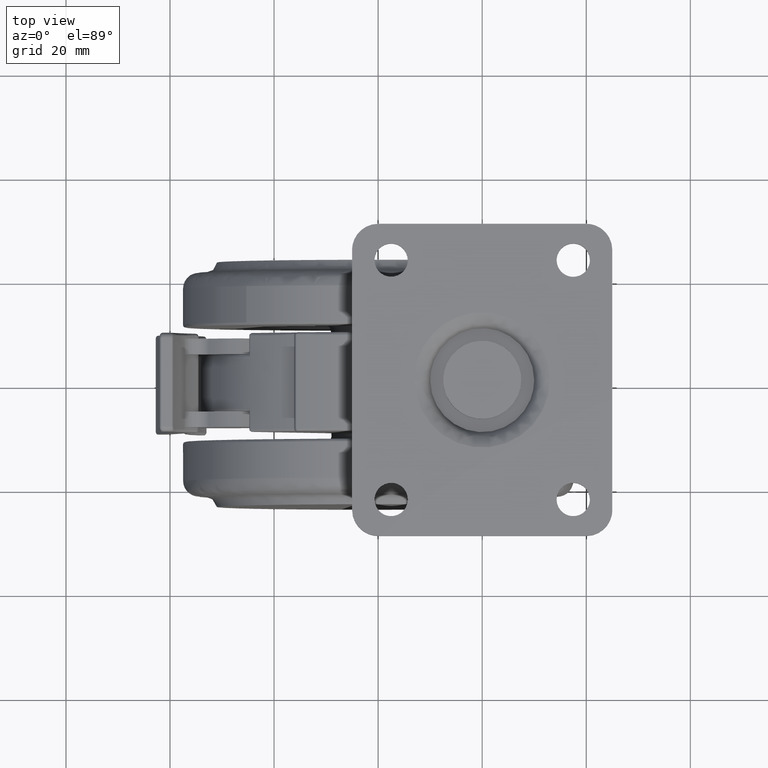
[diagram: clean part render]
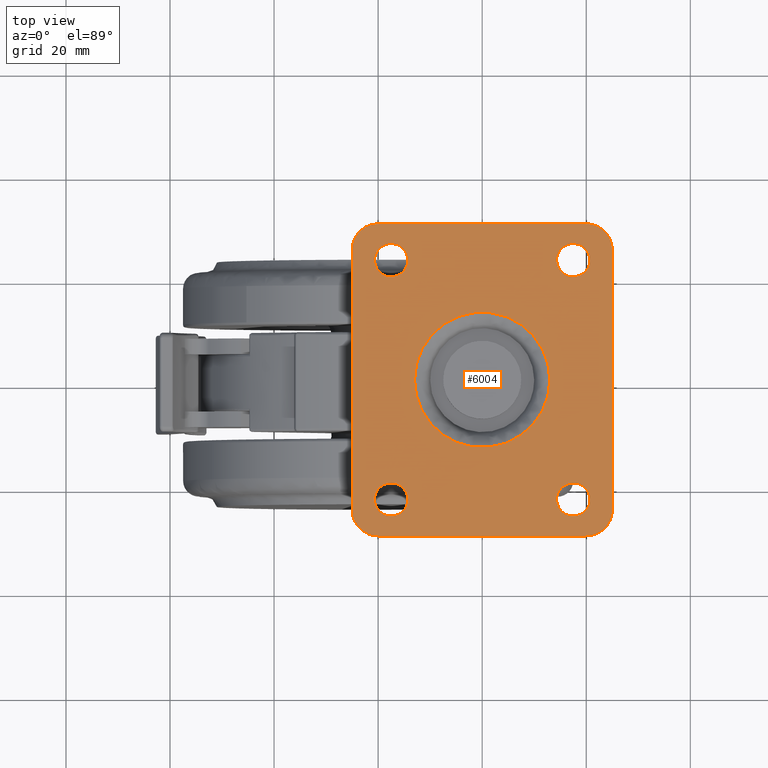
[diagram: same view with one face highlighted and labeled with its STEP entity id]
A machine part, top view. The second image highlights one B-rep face of the part: STEP entity #6004.
In plain terms, the highlighted face is a freeform B-spline surface patch.
Its self-contained STEP definition (entity closure, byte-faithful):
#4632=CARTESIAN_POINT('',(17.751069106415152,26.190135467939239,14.0));
#4633=VERTEX_POINT('',#4632);
#4639=CARTESIAN_POINT('',(14.300000000000001,23.0,14.0));
#4640=VERTEX_POINT('',#4639);
#4641=CARTESIAN_POINT('',(17.751069106415144,26.190135467939239,14.000000000000002));
#4642=CARTESIAN_POINT('',(17.625728342467767,26.200000000000003,13.999999999999996));
#4643=CARTESIAN_POINT('',(17.500000000000000,26.199999999999999,14.0));
#4644=CARTESIAN_POINT('',(14.299999999999999,26.200000000000006,13.999999999999998));
#4645=CARTESIAN_POINT('',(14.300000000000001,23.0,14.0));
#4653=(BOUNDED_CURVE()B_SPLINE_CURVE(2,(#4641,#4642,#4643,#4644,#4645),.UNSPECIFIED.,.F.,.U.)B_SPLINE_CURVE_WITH_KNOTS((3,2,3),(0.736331300628143,0.750000000000000,1.0),.UNSPECIFIED.)CURVE()GEOMETRIC_REPRESENTATION_ITEM()RATIONAL_B_SPLINE_CURVE((0.969723356162166,0.983986122575934,1.0,0.707106781186548,1.0))REPRESENTATION_ITEM(''));
#4654=EDGE_CURVE('',#4633,#4640,#4653,.T.);
#4656=CARTESIAN_POINT('',(17.248930893584848,19.809864532060761,14.0));
#4657=VERTEX_POINT('',#4656);
#4658=CARTESIAN_POINT('',(14.300000000000001,23.0,14.0));
#4659=CARTESIAN_POINT('',(14.300000000000002,20.041950426773770,13.999999999999995));
#4660=CARTESIAN_POINT('',(17.248930893584848,19.809864532060761,13.999999999999995));
#4668=(BOUNDED_CURVE()B_SPLINE_CURVE(2,(#4658,#4659,#4660),.UNSPECIFIED.,.F.,.U.)B_SPLINE_CURVE_WITH_KNOTS((3,3),(0.0,0.236331300628143),.UNSPECIFIED.)CURVE()GEOMETRIC_REPRESENTATION_ITEM()RATIONAL_B_SPLINE_CURVE((1.0,0.723120658610614,0.969723356162166))REPRESENTATION_ITEM(''));
#4669=EDGE_CURVE('',#4640,#4657,#4668,.T.);
#4715=CARTESIAN_POINT('',(20.699999999999999,23.0,14.0));
#4716=VERTEX_POINT('',#4715);
#4717=CARTESIAN_POINT('',(17.248930893584848,19.809864532060761,13.999999999999995));
#4718=CARTESIAN_POINT('',(17.374271657532230,19.799999999999994,13.999999999999998));
#4719=CARTESIAN_POINT('',(17.500000000000000,19.800000000000001,14.0));
#4720=CARTESIAN_POINT('',(20.700000000000006,19.799999999999997,13.999999999999998));
#4721=CARTESIAN_POINT('',(20.699999999999999,23.0,14.0));
#4729=(BOUNDED_CURVE()B_SPLINE_CURVE(2,(#4717,#4718,#4719,#4720,#4721),.UNSPECIFIED.,.F.,.U.)B_SPLINE_CURVE_WITH_KNOTS((3,2,3),(0.236331300628143,0.250000000000000,0.500000000000000),.UNSPECIFIED.)CURVE()GEOMETRIC_REPRESENTATION_ITEM()RATIONAL_B_SPLINE_CURVE((0.969723356162166,0.983986122575934,1.0,0.707106781186548,1.0))REPRESENTATION_ITEM(''));
#4730=EDGE_CURVE('',#4657,#4716,#4729,.T.);
#4732=CARTESIAN_POINT('',(20.699999999999999,23.0,14.0));
#4733=CARTESIAN_POINT('',(20.700000000000006,25.958049573226237,13.999999999999995));
#4734=CARTESIAN_POINT('',(17.751069106415144,26.190135467939239,14.000000000000002));
#4742=(BOUNDED_CURVE()B_SPLINE_CURVE(2,(#4732,#4733,#4734),.UNSPECIFIED.,.F.,.U.)B_SPLINE_CURVE_WITH_KNOTS((3,3),(0.500000000000000,0.736331300628143),.UNSPECIFIED.)CURVE()GEOMETRIC_REPRESENTATION_ITEM()RATIONAL_B_SPLINE_CURVE((1.0,0.723120658610614,0.969723356162166))REPRESENTATION_ITEM(''));
#4743=EDGE_CURVE('',#4716,#4633,#4742,.T.);
#4814=CARTESIAN_POINT('',(-17.248930893584848,26.190135467939239,14.0));
#4815=VERTEX_POINT('',#4814);
#4821=CARTESIAN_POINT('',(-20.699999999999999,23.0,14.0));
#4822=VERTEX_POINT('',#4821);
#4823=CARTESIAN_POINT('',(-17.248930893584856,26.190135467939239,14.000000000000002));
#4824=CARTESIAN_POINT('',(-17.374271657532240,26.200000000000003,13.999999999999996));
#4825=CARTESIAN_POINT('',(-17.500000000000000,26.199999999999999,14.0));
#4826=CARTESIAN_POINT('',(-20.700000000000006,26.200000000000006,13.999999999999998));
#4827=CARTESIAN_POINT('',(-20.699999999999999,23.0,14.0));
#4835=(BOUNDED_CURVE()B_SPLINE_CURVE(2,(#4823,#4824,#4825,#4826,#4827),.UNSPECIFIED.,.F.,.U.)B_SPLINE_CURVE_WITH_KNOTS((3,2,3),(0.736331300628143,0.750000000000000,1.0),.UNSPECIFIED.)CURVE()GEOMETRIC_REPRESENTATION_ITEM()RATIONAL_B_SPLINE_CURVE((0.969723356162166,0.983986122575934,1.0,0.707106781186548,1.0))REPRESENTATION_ITEM(''));
#4836=EDGE_CURVE('',#4815,#4822,#4835,.T.);
#4838=CARTESIAN_POINT('',(-17.751069106415152,19.809864532060761,14.0));
#4839=VERTEX_POINT('',#4838);
#4840=CARTESIAN_POINT('',(-20.699999999999999,23.0,14.0));
#4841=CARTESIAN_POINT('',(-20.700000000000010,20.041950426773774,13.999999999999996));
#4842=CARTESIAN_POINT('',(-17.751069106415144,19.809864532060754,14.000000000000002));
#4850=(BOUNDED_CURVE()B_SPLINE_CURVE(2,(#4840,#4841,#4842),.UNSPECIFIED.,.F.,.U.)B_SPLINE_CURVE_WITH_KNOTS((3,3),(0.0,0.236331300628143),.UNSPECIFIED.)CURVE()GEOMETRIC_REPRESENTATION_ITEM()RATIONAL_B_SPLINE_CURVE((1.0,0.723120658610614,0.969723356162166))REPRESENTATION_ITEM(''));
#4851=EDGE_CURVE('',#4822,#4839,#4850,.T.);
#4897=CARTESIAN_POINT('',(-14.300000000000001,23.0,14.0));
#4898=VERTEX_POINT('',#4897);
#4899=CARTESIAN_POINT('',(-17.751069106415155,19.809864532060768,14.000000000000002));
#4900=CARTESIAN_POINT('',(-17.625728342467767,19.800000000000001,13.999999999999996));
#4901=CARTESIAN_POINT('',(-17.500000000000000,19.800000000000001,14.0));
#4902=CARTESIAN_POINT('',(-14.299999999999999,19.799999999999997,13.999999999999998));
#4903=CARTESIAN_POINT('',(-14.300000000000001,23.0,14.0));
#4911=(BOUNDED_CURVE()B_SPLINE_CURVE(2,(#4899,#4900,#4901,#4902,#4903),.UNSPECIFIED.,.F.,.U.)B_SPLINE_CURVE_WITH_KNOTS((3,2,3),(0.236331300628143,0.250000000000000,0.500000000000000),.UNSPECIFIED.)CURVE()GEOMETRIC_REPRESENTATION_ITEM()RATIONAL_B_SPLINE_CURVE((0.969723356162166,0.983986122575934,1.0,0.707106781186548,1.0))REPRESENTATION_ITEM(''));
#4912=EDGE_CURVE('',#4839,#4898,#4911,.T.);
#4914=CARTESIAN_POINT('',(-14.300000000000001,23.0,14.0));
#4915=CARTESIAN_POINT('',(-14.300000000000002,25.958049573226237,13.999999999999995));
#4916=CARTESIAN_POINT('',(-17.248930893584856,26.190135467939239,14.000000000000002));
#4924=(BOUNDED_CURVE()B_SPLINE_CURVE(2,(#4914,#4915,#4916),.UNSPECIFIED.,.F.,.U.)B_SPLINE_CURVE_WITH_KNOTS((3,3),(0.500000000000000,0.736331300628143),.UNSPECIFIED.)CURVE()GEOMETRIC_REPRESENTATION_ITEM()RATIONAL_B_SPLINE_CURVE((1.0,0.723120658610614,0.969723356162166))REPRESENTATION_ITEM(''));
#4925=EDGE_CURVE('',#4898,#4815,#4924,.T.);
#4996=CARTESIAN_POINT('',(-17.248930893584848,-19.809864532060761,14.0));
#4997=VERTEX_POINT('',#4996);
#5003=CARTESIAN_POINT('',(-20.699999999999999,-23.0,14.0));
#5004=VERTEX_POINT('',#5003);
#5005=CARTESIAN_POINT('',(-17.248930893584856,-19.809864532060754,14.000000000000002));
#5006=CARTESIAN_POINT('',(-17.374271657532240,-19.799999999999990,13.999999999999996));
#5007=CARTESIAN_POINT('',(-17.500000000000000,-19.800000000000001,14.0));
#5008=CARTESIAN_POINT('',(-20.700000000000006,-19.799999999999997,13.999999999999998));
#5009=CARTESIAN_POINT('',(-20.699999999999999,-23.0,14.0));
#5017=(BOUNDED_CURVE()B_SPLINE_CURVE(2,(#5005,#5006,#5007,#5008,#5009),.UNSPECIFIED.,.F.,.U.)B_SPLINE_CURVE_WITH_KNOTS((3,2,3),(0.736331300628143,0.750000000000000,1.0),.UNSPECIFIED.)CURVE()GEOMETRIC_REPRESENTATION_ITEM()RATIONAL_B_SPLINE_CURVE((0.969723356162166,0.983986122575934,1.0,0.707106781186548,1.0))REPRESENTATION_ITEM(''));
#5018=EDGE_CURVE('',#4997,#5004,#5017,.T.);
#5020=CARTESIAN_POINT('',(-17.751069106415152,-26.190135467939239,14.0));
#5021=VERTEX_POINT('',#5020);
#5022=CARTESIAN_POINT('',(-20.699999999999999,-23.0,14.0));
#5023=CARTESIAN_POINT('',(-20.699999999999999,-25.958049573226234,14.0));
#5024=CARTESIAN_POINT('',(-17.751069106415152,-26.190135467939246,13.999999999999998));
#5032=(BOUNDED_CURVE()B_SPLINE_CURVE(2,(#5022,#5023,#5024),.UNSPECIFIED.,.F.,.U.)B_SPLINE_CURVE_WITH_KNOTS((3,3),(0.0,0.236331300628143),.UNSPECIFIED.)CURVE()GEOMETRIC_REPRESENTATION_ITEM()RATIONAL_B_SPLINE_CURVE((1.0,0.723120658610614,0.969723356162167))REPRESENTATION_ITEM(''));
#5033=EDGE_CURVE('',#5004,#5021,#5032,.T.);
#5079=CARTESIAN_POINT('',(-14.300000000000001,-23.0,14.0));
#5080=VERTEX_POINT('',#5079);
#5081=CARTESIAN_POINT('',(-17.751069106415152,-26.190135467939246,13.999999999999998));
#5082=CARTESIAN_POINT('',(-17.625728342467767,-26.200000000000010,14.000000000000004));
#5083=CARTESIAN_POINT('',(-17.500000000000000,-26.199999999999999,14.0));
#5084=CARTESIAN_POINT('',(-14.299999999999999,-26.200000000000006,13.999999999999998));
#5085=CARTESIAN_POINT('',(-14.300000000000001,-23.0,14.0));
#5093=(BOUNDED_CURVE()B_SPLINE_CURVE(2,(#5081,#5082,#5083,#5084,#5085),.UNSPECIFIED.,.F.,.U.)B_SPLINE_CURVE_WITH_KNOTS((3,2,3),(0.236331300628143,0.250000000000000,0.500000000000000),.UNSPECIFIED.)CURVE()GEOMETRIC_REPRESENTATION_ITEM()RATIONAL_B_SPLINE_CURVE((0.969723356162167,0.983986122575934,1.0,0.707106781186548,1.0))REPRESENTATION_ITEM(''));
#5094=EDGE_CURVE('',#5021,#5080,#5093,.T.);
#5096=CARTESIAN_POINT('',(-14.300000000000001,-23.0,14.0));
#5097=CARTESIAN_POINT('',(-14.300000000000006,-20.041950426773759,14.0));
#5098=CARTESIAN_POINT('',(-17.248930893584848,-19.809864532060761,13.999999999999998));
#5106=(BOUNDED_CURVE()B_SPLINE_CURVE(2,(#5096,#5097,#5098),.UNSPECIFIED.,.F.,.U.)B_SPLINE_CURVE_WITH_KNOTS((3,3),(0.500000000000000,0.736331300628143),.UNSPECIFIED.)CURVE()GEOMETRIC_REPRESENTATION_ITEM()RATIONAL_B_SPLINE_CURVE((1.0,0.723120658610614,0.969723356162167))REPRESENTATION_ITEM(''));
#5107=EDGE_CURVE('',#5080,#4997,#5106,.T.);
#5178=CARTESIAN_POINT('',(17.751069106415152,-19.809864532060761,14.0));
#5179=VERTEX_POINT('',#5178);
#5185=CARTESIAN_POINT('',(14.300000000000001,-23.0,14.0));
#5186=VERTEX_POINT('',#5185);
#5187=CARTESIAN_POINT('',(17.751069106415144,-19.809864532060754,14.000000000000002));
#5188=CARTESIAN_POINT('',(17.625728342467767,-19.799999999999990,13.999999999999996));
#5189=CARTESIAN_POINT('',(17.500000000000000,-19.800000000000001,14.0));
#5190=CARTESIAN_POINT('',(14.299999999999999,-19.799999999999997,13.999999999999998));
#5191=CARTESIAN_POINT('',(14.300000000000001,-23.0,14.0));
#5199=(BOUNDED_CURVE()B_SPLINE_CURVE(2,(#5187,#5188,#5189,#5190,#5191),.UNSPECIFIED.,.F.,.U.)B_SPLINE_CURVE_WITH_KNOTS((3,2,3),(0.736331300628143,0.750000000000000,1.0),.UNSPECIFIED.)CURVE()GEOMETRIC_REPRESENTATION_ITEM()RATIONAL_B_SPLINE_CURVE((0.969723356162166,0.983986122575934,1.0,0.707106781186548,1.0))REPRESENTATION_ITEM(''));
#5200=EDGE_CURVE('',#5179,#5186,#5199,.T.);
#5202=CARTESIAN_POINT('',(17.248930893584848,-26.190135467939239,14.0));
#5203=VERTEX_POINT('',#5202);
#5204=CARTESIAN_POINT('',(14.300000000000001,-23.0,14.0));
#5205=CARTESIAN_POINT('',(14.300000000000002,-25.958049573226237,13.999999999999995));
#5206=CARTESIAN_POINT('',(17.248930893584848,-26.190135467939246,13.999999999999995));
#5214=(BOUNDED_CURVE()B_SPLINE_CURVE(2,(#5204,#5205,#5206),.UNSPECIFIED.,.F.,.U.)B_SPLINE_CURVE_WITH_KNOTS((3,3),(0.0,0.236331300628143),.UNSPECIFIED.)CURVE()GEOMETRIC_REPRESENTATION_ITEM()RATIONAL_B_SPLINE_CURVE((1.0,0.723120658610614,0.969723356162166))REPRESENTATION_ITEM(''));
#5215=EDGE_CURVE('',#5186,#5203,#5214,.T.);
#5261=CARTESIAN_POINT('',(20.699999999999999,-23.0,14.0));
#5262=VERTEX_POINT('',#5261);
#5263=CARTESIAN_POINT('',(17.248930893584848,-26.190135467939246,13.999999999999995));
#5264=CARTESIAN_POINT('',(17.374271657532230,-26.200000000000006,13.999999999999998));
#5265=CARTESIAN_POINT('',(17.500000000000000,-26.199999999999999,14.0));
#5266=CARTESIAN_POINT('',(20.700000000000006,-26.200000000000006,13.999999999999998));
#5267=CARTESIAN_POINT('',(20.699999999999999,-23.0,14.0));
#5275=(BOUNDED_CURVE()B_SPLINE_CURVE(2,(#5263,#5264,#5265,#5266,#5267),.UNSPECIFIED.,.F.,.U.)B_SPLINE_CURVE_WITH_KNOTS((3,2,3),(0.236331300628143,0.250000000000000,0.500000000000000),.UNSPECIFIED.)CURVE()GEOMETRIC_REPRESENTATION_ITEM()RATIONAL_B_SPLINE_CURVE((0.969723356162166,0.983986122575934,1.0,0.707106781186548,1.0))REPRESENTATION_ITEM(''));
#5276=EDGE_CURVE('',#5203,#5262,#5275,.T.);
#5278=CARTESIAN_POINT('',(20.699999999999999,-23.0,14.0));
#5279=CARTESIAN_POINT('',(20.700000000000003,-20.041950426773766,13.999999999999993));
#5280=CARTESIAN_POINT('',(17.751069106415148,-19.809864532060761,13.999999999999996));
#5288=(BOUNDED_CURVE()B_SPLINE_CURVE(2,(#5278,#5279,#5280),.UNSPECIFIED.,.F.,.U.)B_SPLINE_CURVE_WITH_KNOTS((3,3),(0.500000000000000,0.736331300628143),.UNSPECIFIED.)CURVE()GEOMETRIC_REPRESENTATION_ITEM()RATIONAL_B_SPLINE_CURVE((1.0,0.723120658610614,0.969723356162166))REPRESENTATION_ITEM(''));
#5289=EDGE_CURVE('',#5262,#5179,#5288,.T.);
#5436=CARTESIAN_POINT('',(-12.998973574499400,-0.163358518607271,14.0));
#5437=VERTEX_POINT('',#5436);
#5451=CARTESIAN_POINT('',(13.0,-2.842171E-014,14.0));
#5452=VERTEX_POINT('',#5451);
#5453=CARTESIAN_POINT('',(13.0,-2.842171E-014,14.0));
#5454=CARTESIAN_POINT('',(13.000056451423641,-0.715011803967025,14.0));
#5455=CARTESIAN_POINT('',(12.883910395871011,-2.118564609007423,14.0));
#5456=CARTESIAN_POINT('',(12.433853577406010,-3.922914054075667,13.999999999999980));
#5457=CARTESIAN_POINT('',(11.752454205885069,-5.649648345914322,13.999999999999940));
#5458=CARTESIAN_POINT('',(10.818004925681191,-7.319180773189707,14.000000000000041));
#5459=CARTESIAN_POINT('',(9.516976360845726,-8.933377796915682,14.000000000000201));
#5460=CARTESIAN_POINT('',(7.884716219747815,-10.413666022817170,13.999999999999760));
#5461=CARTESIAN_POINT('',(6.225382604290036,-11.473821223326080,14.000000000000210));
#5462=CARTESIAN_POINT('',(4.378501264051804,-12.282356596374340,13.999999999999879));
#5463=CARTESIAN_POINT('',(2.795132210074268,-12.734653440117039,14.000000000000130));
#5464=CARTESIAN_POINT('',(1.011003784437987,-12.998523848591731,14.000000000000020));
#5465=CARTESIAN_POINT('',(-0.901047351966347,-13.028123006644019,14.000000000000179));
#5466=CARTESIAN_POINT('',(-3.135704995402905,-12.691461553726940,13.999999999999940));
#5467=CARTESIAN_POINT('',(-5.172134182643729,-11.987303516655119,14.000000000000030));
#5468=CARTESIAN_POINT('',(-6.786172216734644,-11.122567445774649,14.000000000000011));
#5469=CARTESIAN_POINT('',(-8.222871823166567,-10.122963353992100,14.0));
#5470=CARTESIAN_POINT('',(-9.433793446520081,-9.005204566037364,14.000000000000011));
#5471=CARTESIAN_POINT('',(-10.544966019520979,-7.652939484570258,14.0));
#5472=CARTESIAN_POINT('',(-11.449654613573230,-6.247022368457474,14.000000000000030));
#5473=CARTESIAN_POINT('',(-12.160088627852220,-4.702768668386544,14.000000000000050));
#5474=CARTESIAN_POINT('',(-12.794605188550671,-2.650260261085027,13.999999999999680));
#5475=CARTESIAN_POINT('',(-12.986550615944701,-1.169643185583669,14.000000000000590));
#5476=CARTESIAN_POINT('',(-12.998973574499400,-0.163358518607271,14.0));
#5477=B_SPLINE_CURVE_WITH_KNOTS('',3,(#5453,#5454,#5455,#5456,#5457,#5458,#5459,#5460,#5461,#5462,#5463,#5464,#5465,#5466,#5467,#5468,#5469,#5470,#5471,#5472,#5473,#5474,#5475,#5476),.UNSPECIFIED.,.F.,.U.,(4,1,1,1,1,1,1,1,1,1,1,1,1,1,1,1,1,1,1,1,1,4),(0.000000205963190,2.145029120982315,4.210712998529012,5.561346406963224,7.706448636641440,9.931008272553463,11.758325449501299,14.300687466126320,15.810196137364070,17.796419672031298,19.226438849971139,21.212613919497262,23.516569564696670,25.979486889757979,27.647904486040581,28.998535730764221,31.223092027673729,32.573721699874383,34.242144225301693,36.228317201136527,37.658395604964277,40.677404979946061),.UNSPECIFIED.);
#5478=EDGE_CURVE('',#5452,#5437,#5477,.T.);
#5480=CARTESIAN_POINT('',(12.998973574499400,0.163358518607215,14.0));
#5481=VERTEX_POINT('',#5480);
#5482=CARTESIAN_POINT('',(12.998973574499399,0.163358518607215,13.999999999999998));
#5483=CARTESIAN_POINT('',(12.999999999925684,0.081682483956376,14.0));
#5484=CARTESIAN_POINT('',(13.0,-2.842171E-014,14.0));
#5492=(BOUNDED_CURVE()B_SPLINE_CURVE(2,(#5482,#5483,#5484),.UNSPECIFIED.,.F.,.U.)B_SPLINE_CURVE_WITH_KNOTS((3,3),(0.497784295920030,0.500000000000000),.UNSPECIFIED.)CURVE()GEOMETRIC_REPRESENTATION_ITEM()RATIONAL_B_SPLINE_CURVE((0.994854295640104,0.997404141200318,1.0))REPRESENTATION_ITEM(''));
#5493=EDGE_CURVE('',#5481,#5452,#5492,.T.);
#5542=CARTESIAN_POINT('',(-13.0,-2.842171E-014,14.0));
#5543=VERTEX_POINT('',#5542);
#5544=CARTESIAN_POINT('',(-13.0,-2.842171E-014,14.0));
#5545=CARTESIAN_POINT('',(-13.000408780571460,1.165268562670779,13.999999999999989));
#5546=CARTESIAN_POINT('',(-12.763374162294330,2.912896252460544,14.000000000000060));
#5547=CARTESIAN_POINT('',(-12.045349070081940,4.967552318666209,13.999999999999920));
#5548=CARTESIAN_POINT('',(-11.338604686590919,6.422352050223892,14.000000000000050));
#5549=CARTESIAN_POINT('',(-10.462793333893281,7.784529620336579,14.000000000000091));
#5550=CARTESIAN_POINT('',(-9.322323092107766,9.114271898991506,13.999999999999821));
#5551=CARTESIAN_POINT('',(-8.096795601573376,10.212071582069100,13.999999999999920));
#5552=CARTESIAN_POINT('',(-6.768841754807387,11.136745844070569,14.000000000000160));
#5553=CARTESIAN_POINT('',(-5.196747674830882,11.967315481095079,13.999999999999449));
#5554=CARTESIAN_POINT('',(-3.317456074068012,12.630754404280980,14.000000000000799));
#5555=CARTESIAN_POINT('',(-1.250022702625486,12.994844520569080,13.999999999998790));
#5556=CARTESIAN_POINT('',(1.086974384158388,13.031086758515620,14.000000000001711));
#5557=CARTESIAN_POINT('',(3.082286375066051,12.686637994396721,13.999999999999080));
#5558=CARTESIAN_POINT('',(5.216453455813038,11.963264589176189,14.000000000000460));
#5559=CARTESIAN_POINT('',(7.038251379760710,11.022893085922140,13.999999999998691));
#5560=CARTESIAN_POINT('',(9.086515736741745,9.413550109872993,14.000000000000281));
#5561=CARTESIAN_POINT('',(10.682948255394059,7.553533651767970,14.000000000000121));
#5562=CARTESIAN_POINT('',(11.714658656113240,5.724631349947906,13.999999999999689));
#5563=CARTESIAN_POINT('',(12.357490105951630,4.125840444466414,14.000000000000700));
#5564=CARTESIAN_POINT('',(12.837613066035249,2.385994217003898,13.999999999997820));
#5565=CARTESIAN_POINT('',(12.988757130825819,0.984254667880944,14.000000000003091));
#5566=CARTESIAN_POINT('',(12.998973574499400,0.163358518607215,14.0));
#5567=B_SPLINE_CURVE_WITH_KNOTS('',3,(#5544,#5545,#5546,#5547,#5548,#5549,#5550,#5551,#5552,#5553,#5554,#5555,#5556,#5557,#5558,#5559,#5560,#5561,#5562,#5563,#5564,#5565,#5566),.UNSPECIFIED.,.F.,.U.,(4,1,1,1,1,1,1,1,1,1,1,1,1,1,1,1,1,1,1,1,4),(0.000000205975148,3.495657814391379,5.243567159965025,6.514711449987111,8.342032701111741,10.089905409110450,11.758325449509799,13.267850886776330,14.936257659432229,17.081386796702638,19.226438849977718,21.212613919503251,24.072716734364089,25.264438232817142,27.965695752034460,30.190261352917780,33.050411571681593,35.274977731044203,36.466703515855080,38.214543190531373,40.677404979946083),.UNSPECIFIED.);
#5568=EDGE_CURVE('',#5543,#5481,#5567,.T.);
#5570=CARTESIAN_POINT('',(-12.998973574499399,-0.163358518607271,13.999999999999998));
#5571=CARTESIAN_POINT('',(-12.999999999925684,-0.081682483956432,14.0));
#5572=CARTESIAN_POINT('',(-13.0,-2.842171E-014,14.0));
#5580=(BOUNDED_CURVE()B_SPLINE_CURVE(2,(#5570,#5571,#5572),.UNSPECIFIED.,.F.,.U.)B_SPLINE_CURVE_WITH_KNOTS((3,3),(0.997784295920030,1.0),.UNSPECIFIED.)CURVE()GEOMETRIC_REPRESENTATION_ITEM()RATIONAL_B_SPLINE_CURVE((0.994854295640104,0.997404141200318,1.0))REPRESENTATION_ITEM(''));
#5581=EDGE_CURVE('',#5437,#5543,#5580,.T.);
#5878=CARTESIAN_POINT('',(-27.497499903090301,32.996999883708362,14.0));
#5879=CARTESIAN_POINT('',(27.497501244194812,32.996999883708362,14.0));
#5880=CARTESIAN_POINT('',(-27.497499903090301,-32.997001493033771,14.0));
#5881=CARTESIAN_POINT('',(27.497501244194812,-32.997001493033771,14.0));
#5882=B_SPLINE_SURFACE_WITH_KNOTS('',1,1,((#5878,#5880),(#5879,#5881)),.UNSPECIFIED.,.F.,.F.,.U.,(2,2),(2,2),(0.0,54.995001147285109),(0.0,65.994001376742119),.UNSPECIFIED.);
#5883=CARTESIAN_POINT('',(19.999999999995602,30.0,14.0));
#5884=VERTEX_POINT('',#5883);
#5885=CARTESIAN_POINT('',(-20.000000000004551,30.0,14.0));
#5886=VERTEX_POINT('',#5885);
#5887=CARTESIAN_POINT('',(19.999999999995602,30.0,14.0));
#5888=CARTESIAN_POINT('',(-20.000000000004551,30.0,14.0));
#5889=QUASI_UNIFORM_CURVE('',1,(#5887,#5888),.UNSPECIFIED.,.F.,.U.);
#5890=EDGE_CURVE('',#5884,#5886,#5889,.T.);
#5891=ORIENTED_EDGE('',*,*,#5890,.T.);
#5892=CARTESIAN_POINT('',(-25.0,24.999999999996898,14.0));
#5893=VERTEX_POINT('',#5892);
#5894=CARTESIAN_POINT('',(-20.000000000004540,30.0,14.0));
#5895=CARTESIAN_POINT('',(-25.0,29.999999999995456,14.000000000000002));
#5896=CARTESIAN_POINT('',(-25.0,25.0,14.0));
#5904=(BOUNDED_CURVE()B_SPLINE_CURVE(2,(#5894,#5895,#5896),.UNSPECIFIED.,.F.,.U.)CURVE()GEOMETRIC_REPRESENTATION_ITEM()QUASI_UNIFORM_CURVE()RATIONAL_B_SPLINE_CURVE((1.0,0.707106781186869,1.0))REPRESENTATION_ITEM(''));
#5905=EDGE_CURVE('',#5886,#5893,#5904,.T.);
#5906=ORIENTED_EDGE('',*,*,#5905,.T.);
#5907=CARTESIAN_POINT('',(-25.0,-25.0,14.0));
#5908=VERTEX_POINT('',#5907);
#5909=CARTESIAN_POINT('',(-25.0,24.999999999996898,14.0));
#5910=CARTESIAN_POINT('',(-25.0,-25.0,14.0));
#5911=QUASI_UNIFORM_CURVE('',1,(#5909,#5910),.UNSPECIFIED.,.F.,.U.);
#5912=EDGE_CURVE('',#5893,#5908,#5911,.T.);
#5913=ORIENTED_EDGE('',*,*,#5912,.T.);
#5914=CARTESIAN_POINT('',(-19.999999999998501,-30.0,14.0));
#5915=VERTEX_POINT('',#5914);
#5916=CARTESIAN_POINT('',(-25.0,-25.0,14.0));
#5917=CARTESIAN_POINT('',(-25.000386562474510,-25.572743892930831,14.0));
#5918=CARTESIAN_POINT('',(-24.843646966709390,-26.472394370102108,14.000000000000011));
#5919=CARTESIAN_POINT('',(-24.360192818671621,-27.494182706468148,13.999999999999989));
#5920=CARTESIAN_POINT('',(-23.845370515669160,-28.234803943234549,14.000000000000030));
#5921=CARTESIAN_POINT('',(-23.195087230494810,-28.893202544479859,14.000000000000030));
#5922=CARTESIAN_POINT('',(-22.285143359634549,-29.493182920411542,14.000000000000060));
#5923=CARTESIAN_POINT('',(-21.206695170010502,-29.901572515153980,13.999999999999840));
#5924=CARTESIAN_POINT('',(-20.409066694177049,-30.000101547431370,14.000000000000210));
#5925=CARTESIAN_POINT('',(-19.999999999998501,-30.0,14.0));
#5926=B_SPLINE_CURVE_WITH_KNOTS('',3,(#5916,#5917,#5918,#5919,#5920,#5921,#5922,#5923,#5924,#5925),.UNSPECIFIED.,.F.,.U.,(4,1,1,1,1,1,1,4),(0.000000118009251,1.718064655859971,2.699835361233451,3.374781197457056,4.417863816332789,5.460996252317022,6.626849521619485,7.854030914386748),.UNSPECIFIED.);
#5927=EDGE_CURVE('',#5908,#5915,#5926,.T.);
#5928=ORIENTED_EDGE('',*,*,#5927,.T.);
#5929=CARTESIAN_POINT('',(20.0,-30.0,14.0));
#5930=VERTEX_POINT('',#5929);
#5931=CARTESIAN_POINT('',(-19.999999999998501,-30.0,14.0));
#5932=CARTESIAN_POINT('',(20.0,-30.0,14.0));
#5933=QUASI_UNIFORM_CURVE('',1,(#5931,#5932),.UNSPECIFIED.,.F.,.U.);
#5934=EDGE_CURVE('',#5915,#5930,#5933,.T.);
#5935=ORIENTED_EDGE('',*,*,#5934,.T.);
#5936=CARTESIAN_POINT('',(25.0,-25.0,14.0));
#5937=VERTEX_POINT('',#5936);
#5938=CARTESIAN_POINT('',(20.0,-30.0,14.0));
#5939=CARTESIAN_POINT('',(25.0,-30.000000000000004,13.999999999999998));
#5940=CARTESIAN_POINT('',(25.0,-25.0,14.0));
#5948=(BOUNDED_CURVE()B_SPLINE_CURVE(2,(#5938,#5939,#5940),.UNSPECIFIED.,.F.,.U.)CURVE()GEOMETRIC_REPRESENTATION_ITEM()QUASI_UNIFORM_CURVE()RATIONAL_B_SPLINE_CURVE((1.0,0.707106781186548,1.0))REPRESENTATION_ITEM(''));
#5949=EDGE_CURVE('',#5930,#5937,#5948,.T.);
#5950=ORIENTED_EDGE('',*,*,#5949,.T.);
#5951=CARTESIAN_POINT('',(25.0,25.0,14.0));
#5952=VERTEX_POINT('',#5951);
#5953=CARTESIAN_POINT('',(25.0,-25.0,14.0));
#5954=CARTESIAN_POINT('',(25.0,25.0,14.0));
#5955=QUASI_UNIFORM_CURVE('',1,(#5953,#5954),.UNSPECIFIED.,.F.,.U.);
#5956=EDGE_CURVE('',#5937,#5952,#5955,.T.);
#5957=ORIENTED_EDGE('',*,*,#5956,.T.);
#5958=CARTESIAN_POINT('',(25.0,25.0,14.0));
#5959=CARTESIAN_POINT('',(25.000054297040268,25.347701902753769,13.999999999999989));
#5960=CARTESIAN_POINT('',(24.937852029380601,25.940810957086828,14.000000000000011));
#5961=CARTESIAN_POINT('',(24.652356190380569,26.925728310016080,13.999999999999980));
#5962=CARTESIAN_POINT('',(24.191081380207571,27.801577987489509,14.000000000000050));
#5963=CARTESIAN_POINT('',(23.578245178429921,28.520713269300419,13.999999999999860));
#5964=CARTESIAN_POINT('',(22.880057498252039,29.123085343981309,14.000000000000290));
#5965=CARTESIAN_POINT('',(22.061070607611530,29.600434981846352,13.999999999999631));
#5966=CARTESIAN_POINT('',(21.022626561508581,29.929305427629590,14.000000000000190));
#5967=CARTESIAN_POINT('',(20.347701171029669,30.000052832102750,13.999999999999870));
#5968=CARTESIAN_POINT('',(19.999999999995602,30.0,14.0));
#5969=B_SPLINE_CURVE_WITH_KNOTS('',3,(#5958,#5959,#5960,#5961,#5962,#5963,#5964,#5965,#5966,#5967,#5968),.UNSPECIFIED.,.F.,.U.,(4,1,1,1,1,1,1,1,4),(0.000000118015302,1.043102015149914,1.779429006807546,3.068001900550261,3.988339525617881,4.601946734339276,5.829162510191752,6.810932949346734,7.854030914389531),.UNSPECIFIED.);
#5970=EDGE_CURVE('',#5952,#5884,#5969,.T.);
#5971=ORIENTED_EDGE('',*,*,#5970,.T.);
#5972=EDGE_LOOP('',(#5891,#5906,#5913,#5928,#5935,#5950,#5957,#5971));
#5973=FACE_OUTER_BOUND('',#5972,.T.);
#5974=ORIENTED_EDGE('',*,*,#5478,.T.);
#5975=ORIENTED_EDGE('',*,*,#5581,.T.);
#5976=ORIENTED_EDGE('',*,*,#5568,.T.);
#5977=ORIENTED_EDGE('',*,*,#5493,.T.);
#5978=EDGE_LOOP('',(#5974,#5975,#5976,#5977));
#5979=FACE_BOUND('',#5978,.T.);
#5980=ORIENTED_EDGE('',*,*,#5289,.F.);
#5981=ORIENTED_EDGE('',*,*,#5276,.F.);
#5982=ORIENTED_EDGE('',*,*,#5215,.F.);
#5983=ORIENTED_EDGE('',*,*,#5200,.F.);
#5984=EDGE_LOOP('',(#5980,#5981,#5982,#5983));
#5985=FACE_BOUND('',#5984,.T.);
#5986=ORIENTED_EDGE('',*,*,#5107,.F.);
#5987=ORIENTED_EDGE('',*,*,#5094,.F.);
#5988=ORIENTED_EDGE('',*,*,#5033,.F.);
#5989=ORIENTED_EDGE('',*,*,#5018,.F.);
#5990=EDGE_LOOP('',(#5986,#5987,#5988,#5989));
#5991=FACE_BOUND('',#5990,.T.);
#5992=ORIENTED_EDGE('',*,*,#4925,.F.);
#5993=ORIENTED_EDGE('',*,*,#4912,.F.);
#5994=ORIENTED_EDGE('',*,*,#4851,.F.);
#5995=ORIENTED_EDGE('',*,*,#4836,.F.);
#5996=EDGE_LOOP('',(#5992,#5993,#5994,#5995));
#5997=FACE_BOUND('',#5996,.T.);
#5998=ORIENTED_EDGE('',*,*,#4743,.F.);
#5999=ORIENTED_EDGE('',*,*,#4730,.F.);
#6000=ORIENTED_EDGE('',*,*,#4669,.F.);
#6001=ORIENTED_EDGE('',*,*,#4654,.F.);
#6002=EDGE_LOOP('',(#5998,#5999,#6000,#6001));
#6003=FACE_BOUND('',#6002,.T.);
#6004=ADVANCED_FACE('',(#5973,#5979,#5985,#5991,#5997,#6003),#5882,.F.);